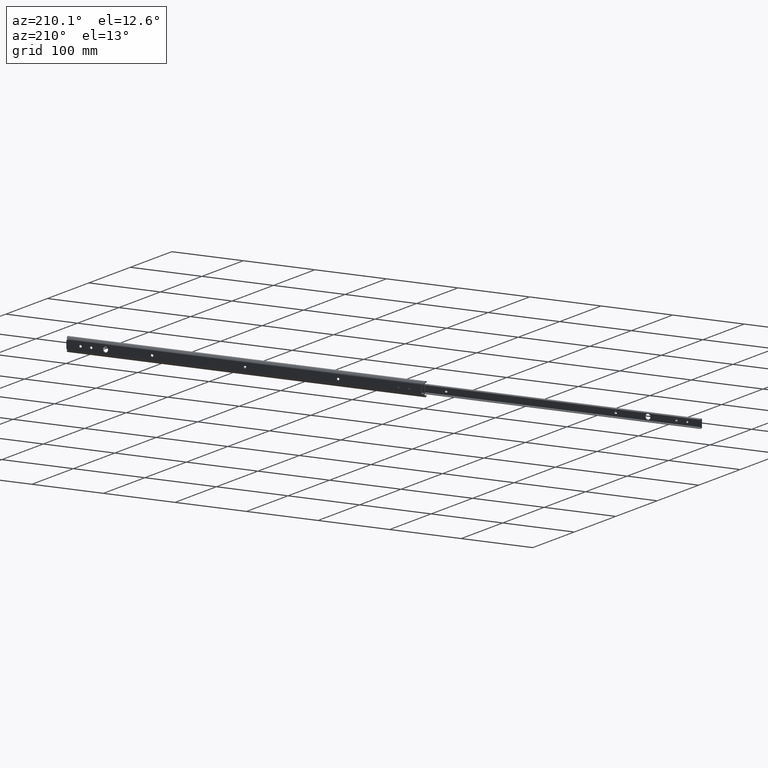
[diagram: clean part render]
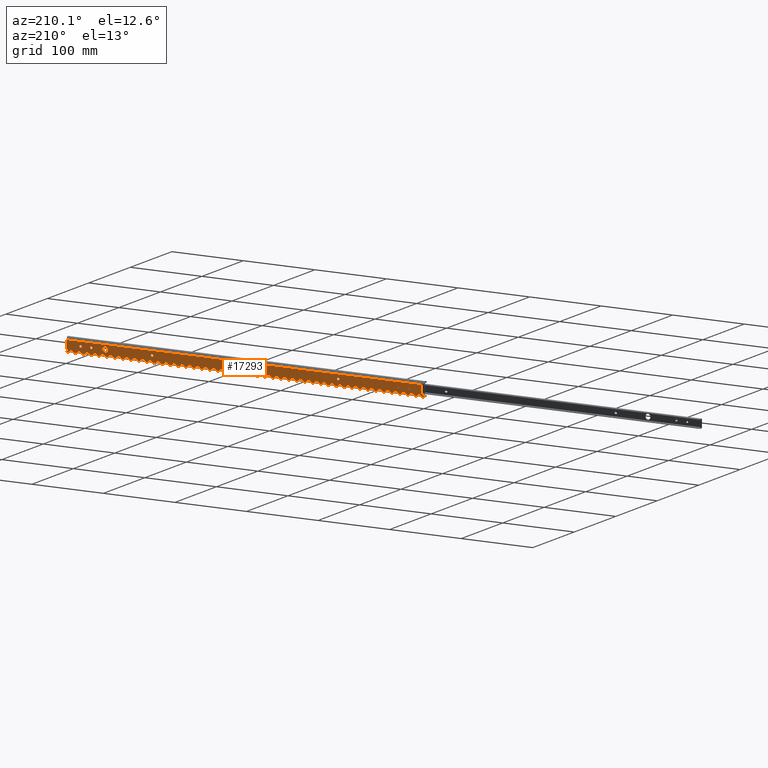
[diagram: same view with one face highlighted and labeled with its STEP entity id]
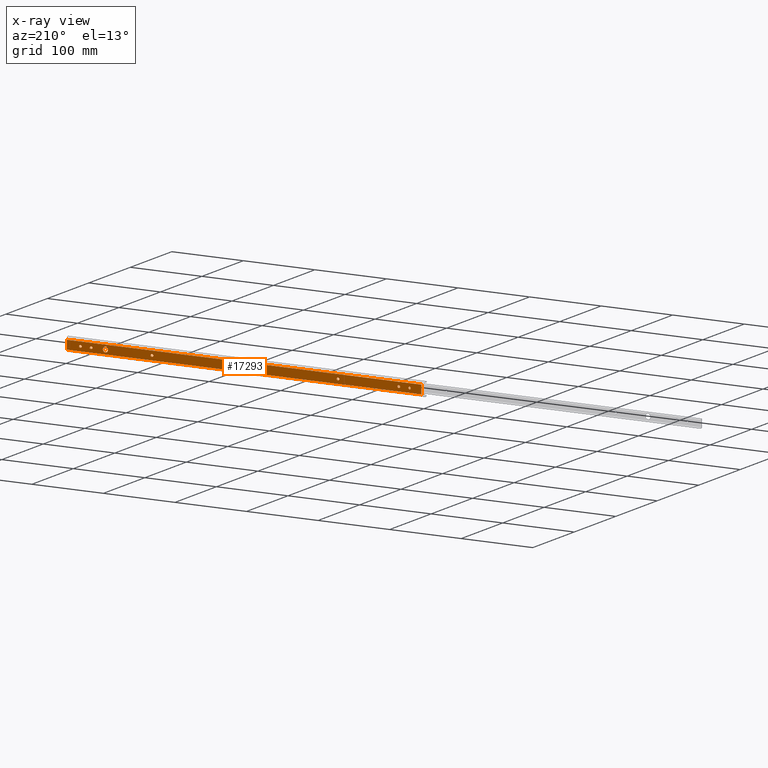
[diagram: x-ray of the same camera — body ghosted, the highlighted face saturated]
A machine part, auxiliary view. The second image highlights one B-rep face of the part: STEP entity #17293.
The next image is the same camera in x-ray: the body ghosted, the highlighted face saturated — about 0% of this face is hidden behind the body in this view.
In plain terms, the highlighted face is a freeform B-spline surface patch.
Its self-contained STEP definition (entity closure, byte-faithful):
#13776=CARTESIAN_POINT('',(21.597015676147201,5.204170E-017,-0.097677684964874));
#13777=VERTEX_POINT('',#13776);
#13783=CARTESIAN_POINT('',(20.0,0.0,-1.600000000000000));
#13784=VERTEX_POINT('',#13783);
#13785=CARTESIAN_POINT('',(20.0,0.0,-1.600000000000000));
#13786=CARTESIAN_POINT('',(21.505129666052557,0.0,-1.600000000000001));
#13787=CARTESIAN_POINT('',(21.597015676147201,5.204170E-017,-0.097677684964874));
#13795=(BOUNDED_CURVE()B_SPLINE_CURVE(2,(#13785,#13786,#13787),.UNSPECIFIED.,.F.,.U.)B_SPLINE_CURVE_WITH_KNOTS((3,3),(0.500000000000000,0.739332957550924),.UNSPECIFIED.)CURVE()GEOMETRIC_REPRESENTATION_ITEM()RATIONAL_B_SPLINE_CURVE((1.0,0.719603998779066,0.976072031619401))REPRESENTATION_ITEM(''));
#13796=EDGE_CURVE('',#13784,#13777,#13795,.T.);
#13798=CARTESIAN_POINT('',(18.411184761992889,4.968999E-017,0.188854810572561));
#13799=VERTEX_POINT('',#13798);
#13800=CARTESIAN_POINT('',(18.411184761992882,4.968999E-017,0.188854810572561));
#13801=CARTESIAN_POINT('',(18.399999999999999,0.0,0.094758626936107));
#13802=CARTESIAN_POINT('',(18.399999999999999,0.0,0.0));
#13803=CARTESIAN_POINT('',(18.399999999999991,0.0,-1.600000000000000));
#13804=CARTESIAN_POINT('',(20.0,0.0,-1.600000000000000));
#13812=(BOUNDED_CURVE()B_SPLINE_CURVE(2,(#13800,#13801,#13802,#13803,#13804),.UNSPECIFIED.,.F.,.U.)B_SPLINE_CURVE_WITH_KNOTS((3,2,3),(0.229562466043801,0.250000000000000,0.500000000000000),.UNSPECIFIED.)CURVE()GEOMETRIC_REPRESENTATION_ITEM()RATIONAL_B_SPLINE_CURVE((0.956026739542767,0.976055939579838,1.0,0.707106781186548,1.0))REPRESENTATION_ITEM(''));
#13813=EDGE_CURVE('',#13799,#13784,#13812,.T.);
#13857=CARTESIAN_POINT('',(20.0,0.0,1.600000000000000));
#13858=VERTEX_POINT('',#13857);
#13859=CARTESIAN_POINT('',(20.0,0.0,1.600000000000000));
#13860=CARTESIAN_POINT('',(18.578920821747779,0.0,1.600000000000000));
#13861=CARTESIAN_POINT('',(18.411184761992882,4.968999E-017,0.188854810572561));
#13869=(BOUNDED_CURVE()B_SPLINE_CURVE(2,(#13859,#13860,#13861),.UNSPECIFIED.,.F.,.U.)B_SPLINE_CURVE_WITH_KNOTS((3,3),(0.0,0.229562466043801),.UNSPECIFIED.)CURVE()GEOMETRIC_REPRESENTATION_ITEM()RATIONAL_B_SPLINE_CURVE((1.0,0.731050841606709,0.956026739542767))REPRESENTATION_ITEM(''));
#13870=EDGE_CURVE('',#13858,#13799,#13869,.T.);
#13872=CARTESIAN_POINT('',(21.597015676147205,5.204170E-017,-0.097677684964874));
#13873=CARTESIAN_POINT('',(21.599999999999998,0.0,-0.048884443047715));
#13874=CARTESIAN_POINT('',(21.600000000000001,0.0,0.0));
#13875=CARTESIAN_POINT('',(21.600000000000005,0.0,1.600000000000000));
#13876=CARTESIAN_POINT('',(20.0,0.0,1.600000000000000));
#13884=(BOUNDED_CURVE()B_SPLINE_CURVE(2,(#13872,#13873,#13874,#13875,#13876),.UNSPECIFIED.,.F.,.U.)B_SPLINE_CURVE_WITH_KNOTS((3,2,3),(0.739332957550924,0.750000000000000,1.0),.UNSPECIFIED.)CURVE()GEOMETRIC_REPRESENTATION_ITEM()RATIONAL_B_SPLINE_CURVE((0.976072031619400,0.987502782407481,1.0,0.707106781186548,1.0))REPRESENTATION_ITEM(''));
#13885=EDGE_CURVE('',#13777,#13858,#13884,.T.);
#13962=CARTESIAN_POINT('',(448.643192014079320,5.204170E-017,-0.222827171925205));
#13963=VERTEX_POINT('',#13962);
#13969=CARTESIAN_POINT('',(445.0,0.0,-3.650000000000000));
#13970=VERTEX_POINT('',#13969);
#13971=CARTESIAN_POINT('',(445.0,0.0,-3.650000000000000));
#13972=CARTESIAN_POINT('',(448.433577139252460,0.0,-3.650000000000000));
#13973=CARTESIAN_POINT('',(448.643192014079370,5.204170E-017,-0.222827171925205));
#13981=(BOUNDED_CURVE()B_SPLINE_CURVE(2,(#13971,#13972,#13973),.UNSPECIFIED.,.F.,.U.)B_SPLINE_CURVE_WITH_KNOTS((3,3),(0.500000000000000,0.739332961993513),.UNSPECIFIED.)CURVE()GEOMETRIC_REPRESENTATION_ITEM()RATIONAL_B_SPLINE_CURVE((1.0,0.719603993574250,0.976072041140714))REPRESENTATION_ITEM(''));
#13982=EDGE_CURVE('',#13970,#13963,#13981,.T.);
#13984=CARTESIAN_POINT('',(441.375515229027090,4.968999E-017,0.430824958638113));
#13985=VERTEX_POINT('',#13984);
#13986=CARTESIAN_POINT('',(441.375515229027090,4.968999E-017,0.430824958638113));
#13987=CARTESIAN_POINT('',(441.350000000000080,0.0,0.216168038893051));
#13988=CARTESIAN_POINT('',(441.350000000000020,0.0,0.0));
#13989=CARTESIAN_POINT('',(441.349999999999910,0.0,-3.650000000000000));
#13990=CARTESIAN_POINT('',(445.0,0.0,-3.650000000000000));
#13998=(BOUNDED_CURVE()B_SPLINE_CURVE(2,(#13986,#13987,#13988,#13989,#13990),.UNSPECIFIED.,.F.,.U.)B_SPLINE_CURVE_WITH_KNOTS((3,2,3),(0.229562473315987,0.250000000000000,0.500000000000000),.UNSPECIFIED.)CURVE()GEOMETRIC_REPRESENTATION_ITEM()RATIONAL_B_SPLINE_CURVE((0.956026753796550,0.976055948099735,1.0,0.707106781186547,1.0))REPRESENTATION_ITEM(''));
#13999=EDGE_CURVE('',#13985,#13970,#13998,.T.);
#14043=CARTESIAN_POINT('',(445.0,0.0,3.650000000000000));
#14044=VERTEX_POINT('',#14043);
#14045=CARTESIAN_POINT('',(445.0,0.0,3.650000000000000));
#14046=CARTESIAN_POINT('',(441.758162984134340,0.0,3.650000000000000));
#14047=CARTESIAN_POINT('',(441.375515229027090,4.968999E-017,0.430824958638113));
#14055=(BOUNDED_CURVE()B_SPLINE_CURVE(2,(#14045,#14046,#14047),.UNSPECIFIED.,.F.,.U.)B_SPLINE_CURVE_WITH_KNOTS((3,3),(0.0,0.229562473315987),.UNSPECIFIED.)CURVE()GEOMETRIC_REPRESENTATION_ITEM()RATIONAL_B_SPLINE_CURVE((1.0,0.731050833086813,0.956026753796550))REPRESENTATION_ITEM(''));
#14056=EDGE_CURVE('',#14044,#13985,#14055,.T.);
#14058=CARTESIAN_POINT('',(448.643192014079320,5.204170E-017,-0.222827171925205));
#14059=CARTESIAN_POINT('',(448.650000000000090,0.0,-0.111517588670181));
#14060=CARTESIAN_POINT('',(448.649999999999980,0.0,0.0));
#14061=CARTESIAN_POINT('',(448.649999999999920,0.0,3.650000000000000));
#14062=CARTESIAN_POINT('',(445.0,0.0,3.650000000000000));
#14070=(BOUNDED_CURVE()B_SPLINE_CURVE(2,(#14058,#14059,#14060,#14061,#14062),.UNSPECIFIED.,.F.,.U.)B_SPLINE_CURVE_WITH_KNOTS((3,2,3),(0.739332961993512,0.750000000000000,1.0),.UNSPECIFIED.)CURVE()GEOMETRIC_REPRESENTATION_ITEM()RATIONAL_B_SPLINE_CURVE((0.976072041140713,0.987502787612298,1.0,0.707106781186547,1.0))REPRESENTATION_ITEM(''));
#14071=EDGE_CURVE('',#13963,#14044,#14070,.T.);
#14106=CARTESIAN_POINT('',(35.299999999999997,8.526513E-014,-1.600000000000080));
#14107=VERTEX_POINT('',#14106);
#14113=CARTESIAN_POINT('',(34.700000000000003,0.0,-1.600000000000000));
#14114=VERTEX_POINT('',#14113);
#14115=CARTESIAN_POINT('',(34.700000000000003,0.0,-1.600000000000000));
#14116=CARTESIAN_POINT('',(35.299999999999997,8.526513E-014,-1.600000000000080));
#14117=QUASI_UNIFORM_CURVE('',1,(#14115,#14116),.UNSPECIFIED.,.F.,.U.);
#14118=EDGE_CURVE('',#14114,#14107,#14117,.T.);
#14164=CARTESIAN_POINT('',(34.700000000000003,0.0,1.600000000000025));
#14165=VERTEX_POINT('',#14164);
#14166=CARTESIAN_POINT('',(34.700000000000003,0.0,1.600000000000000));
#14167=CARTESIAN_POINT('',(33.100000000000009,0.0,1.600000000000000));
#14168=CARTESIAN_POINT('',(33.100000000000001,0.0,0.0));
#14169=CARTESIAN_POINT('',(33.100000000000009,0.0,-1.600000000000000));
#14170=CARTESIAN_POINT('',(34.700000000000003,0.0,-1.600000000000000));
#14178=(BOUNDED_CURVE()B_SPLINE_CURVE(2,(#14166,#14167,#14168,#14169,#14170),.UNSPECIFIED.,.F.,.U.)B_SPLINE_CURVE_WITH_KNOTS((3,2,3),(0.0,0.500000000000000,1.0),.UNSPECIFIED.)CURVE()GEOMETRIC_REPRESENTATION_ITEM()RATIONAL_B_SPLINE_CURVE((1.0,0.707106781186548,1.0,0.707106781186548,1.0))REPRESENTATION_ITEM(''));
#14179=EDGE_CURVE('',#14165,#14114,#14178,.T.);
#14202=CARTESIAN_POINT('',(35.299999999999997,0.0,1.600000000000025));
#14203=VERTEX_POINT('',#14202);
#14204=CARTESIAN_POINT('',(35.299999999999997,0.0,1.600000000000025));
#14205=CARTESIAN_POINT('',(34.700000000000003,0.0,1.600000000000025));
#14206=QUASI_UNIFORM_CURVE('',1,(#14204,#14205),.UNSPECIFIED.,.F.,.U.);
#14207=EDGE_CURVE('',#14203,#14165,#14206,.T.);
#14251=CARTESIAN_POINT('',(35.299999999999997,8.526513E-014,-1.600000000000080));
#14252=CARTESIAN_POINT('',(36.900000000000006,0.0,-1.600000000000000));
#14253=CARTESIAN_POINT('',(36.899999999999999,0.0,0.0));
#14254=CARTESIAN_POINT('',(36.900000000000006,0.0,1.600000000000000));
#14255=CARTESIAN_POINT('',(35.299999999999997,0.0,1.600000000000000));
#14263=(BOUNDED_CURVE()B_SPLINE_CURVE(2,(#14251,#14252,#14253,#14254,#14255),.UNSPECIFIED.,.F.,.U.)B_SPLINE_CURVE_WITH_KNOTS((3,2,3),(0.0,0.500000000000000,1.0),.UNSPECIFIED.)CURVE()GEOMETRIC_REPRESENTATION_ITEM()RATIONAL_B_SPLINE_CURVE((1.0,0.707106781186548,1.0,0.707106781186548,1.0))REPRESENTATION_ITEM(''));
#14264=EDGE_CURVE('',#14107,#14203,#14263,.T.);
#14284=CARTESIAN_POINT('',(120.300000000000000,8.526513E-014,-1.600000000000000));
#14285=VERTEX_POINT('',#14284);
#14291=CARTESIAN_POINT('',(119.700000000000000,0.0,-1.600000000000000));
#14292=VERTEX_POINT('',#14291);
#14293=CARTESIAN_POINT('',(119.700000000000000,0.0,-1.600000000000000));
#14294=CARTESIAN_POINT('',(120.300000000000000,8.526513E-014,-1.600000000000000));
#14295=QUASI_UNIFORM_CURVE('',1,(#14293,#14294),.UNSPECIFIED.,.F.,.U.);
#14296=EDGE_CURVE('',#14292,#14285,#14295,.T.);
#14342=CARTESIAN_POINT('',(119.700000000000000,0.0,1.599999999999910));
#14343=VERTEX_POINT('',#14342);
#14344=CARTESIAN_POINT('',(119.700000000000000,0.0,1.600000000000000));
#14345=CARTESIAN_POINT('',(118.099999999999980,0.0,1.600000000000000));
#14346=CARTESIAN_POINT('',(118.099999999999990,0.0,0.0));
#14347=CARTESIAN_POINT('',(118.099999999999980,0.0,-1.600000000000000));
#14348=CARTESIAN_POINT('',(119.700000000000000,0.0,-1.600000000000000));
#14356=(BOUNDED_CURVE()B_SPLINE_CURVE(2,(#14344,#14345,#14346,#14347,#14348),.UNSPECIFIED.,.F.,.U.)B_SPLINE_CURVE_WITH_KNOTS((3,2,3),(0.0,0.500000000000000,1.0),.UNSPECIFIED.)CURVE()GEOMETRIC_REPRESENTATION_ITEM()RATIONAL_B_SPLINE_CURVE((1.0,0.707106781186548,1.0,0.707106781186548,1.0))REPRESENTATION_ITEM(''));
#14357=EDGE_CURVE('',#14343,#14292,#14356,.T.);
#14380=CARTESIAN_POINT('',(120.300000000000000,0.0,1.599999999999910));
#14381=VERTEX_POINT('',#14380);
#14382=CARTESIAN_POINT('',(120.300000000000000,0.0,1.599999999999910));
#14383=CARTESIAN_POINT('',(119.700000000000000,0.0,1.599999999999910));
#14384=QUASI_UNIFORM_CURVE('',1,(#14382,#14383),.UNSPECIFIED.,.F.,.U.);
#14385=EDGE_CURVE('',#14381,#14343,#14384,.T.);
#14429=CARTESIAN_POINT('',(120.300000000000000,0.0,-1.600000000000000));
#14430=CARTESIAN_POINT('',(121.900000000000010,0.0,-1.600000000000000));
#14431=CARTESIAN_POINT('',(121.900000000000010,0.0,0.0));
#14432=CARTESIAN_POINT('',(121.900000000000010,0.0,1.600000000000000));
#14433=CARTESIAN_POINT('',(120.300000000000000,0.0,1.600000000000000));
#14441=(BOUNDED_CURVE()B_SPLINE_CURVE(2,(#14429,#14430,#14431,#14432,#14433),.UNSPECIFIED.,.F.,.U.)B_SPLINE_CURVE_WITH_KNOTS((3,2,3),(0.0,0.500000000000000,1.0),.UNSPECIFIED.)CURVE()GEOMETRIC_REPRESENTATION_ITEM()RATIONAL_B_SPLINE_CURVE((1.0,0.707106781186548,1.0,0.707106781186548,1.0))REPRESENTATION_ITEM(''));
#14442=EDGE_CURVE('',#14285,#14381,#14441,.T.);
#14462=CARTESIAN_POINT('',(250.300000000000010,8.526513E-014,-1.600000000000000));
#14463=VERTEX_POINT('',#14462);
#14469=CARTESIAN_POINT('',(249.699999999999990,0.0,-1.600000000000000));
#14470=VERTEX_POINT('',#14469);
#14471=CARTESIAN_POINT('',(249.699999999999990,0.0,-1.600000000000000));
#14472=CARTESIAN_POINT('',(250.300000000000010,8.526513E-014,-1.600000000000000));
#14473=QUASI_UNIFORM_CURVE('',1,(#14471,#14472),.UNSPECIFIED.,.F.,.U.);
#14474=EDGE_CURVE('',#14470,#14463,#14473,.T.);
#14520=CARTESIAN_POINT('',(249.699999999999990,0.0,1.599999999999910));
#14521=VERTEX_POINT('',#14520);
#14522=CARTESIAN_POINT('',(249.699999999999990,0.0,1.600000000000000));
#14523=CARTESIAN_POINT('',(248.100000000000080,0.0,1.600000000000000));
#14524=CARTESIAN_POINT('',(248.099999999999990,0.0,0.0));
#14525=CARTESIAN_POINT('',(248.100000000000080,0.0,-1.600000000000000));
#14526=CARTESIAN_POINT('',(249.699999999999990,0.0,-1.600000000000000));
#14534=(BOUNDED_CURVE()B_SPLINE_CURVE(2,(#14522,#14523,#14524,#14525,#14526),.UNSPECIFIED.,.F.,.U.)B_SPLINE_CURVE_WITH_KNOTS((3,2,3),(0.0,0.500000000000000,1.0),.UNSPECIFIED.)CURVE()GEOMETRIC_REPRESENTATION_ITEM()RATIONAL_B_SPLINE_CURVE((1.0,0.707106781186548,1.0,0.707106781186548,1.0))REPRESENTATION_ITEM(''));
#14535=EDGE_CURVE('',#14521,#14470,#14534,.T.);
#14558=CARTESIAN_POINT('',(250.300000000000010,0.0,1.599999999999910));
#14559=VERTEX_POINT('',#14558);
#14560=CARTESIAN_POINT('',(250.300000000000010,0.0,1.599999999999910));
#14561=CARTESIAN_POINT('',(249.699999999999990,0.0,1.599999999999910));
#14562=QUASI_UNIFORM_CURVE('',1,(#14560,#14561),.UNSPECIFIED.,.F.,.U.);
#14563=EDGE_CURVE('',#14559,#14521,#14562,.T.);
#14607=CARTESIAN_POINT('',(250.300000000000010,0.0,-1.600000000000000));
#14608=CARTESIAN_POINT('',(251.900000000000090,0.0,-1.600000000000000));
#14609=CARTESIAN_POINT('',(251.900000000000010,0.0,0.0));
#14610=CARTESIAN_POINT('',(251.900000000000090,0.0,1.600000000000000));
#14611=CARTESIAN_POINT('',(250.300000000000010,0.0,1.600000000000000));
#14619=(BOUNDED_CURVE()B_SPLINE_CURVE(2,(#14607,#14608,#14609,#14610,#14611),.UNSPECIFIED.,.F.,.U.)B_SPLINE_CURVE_WITH_KNOTS((3,2,3),(0.0,0.500000000000000,1.0),.UNSPECIFIED.)CURVE()GEOMETRIC_REPRESENTATION_ITEM()RATIONAL_B_SPLINE_CURVE((1.0,0.707106781186548,1.0,0.707106781186548,1.0))REPRESENTATION_ITEM(''));
#14620=EDGE_CURVE('',#14463,#14559,#14619,.T.);
#14640=CARTESIAN_POINT('',(380.300000000000010,8.526513E-014,-1.600000000000000));
#14641=VERTEX_POINT('',#14640);
#14647=CARTESIAN_POINT('',(379.699999999999990,0.0,-1.600000000000025));
#14648=VERTEX_POINT('',#14647);
#14649=CARTESIAN_POINT('',(379.699999999999990,0.0,-1.600000000000025));
#14650=CARTESIAN_POINT('',(380.300000000000010,8.526513E-014,-1.600000000000000));
#14651=QUASI_UNIFORM_CURVE('',1,(#14649,#14650),.UNSPECIFIED.,.F.,.U.);
#14652=EDGE_CURVE('',#14648,#14641,#14651,.T.);
#14698=CARTESIAN_POINT('',(379.699999999999990,0.0,1.599999999999910));
#14699=VERTEX_POINT('',#14698);
#14700=CARTESIAN_POINT('',(379.699999999999990,0.0,1.600000000000025));
#14701=CARTESIAN_POINT('',(378.100000000000020,0.0,1.600000000000026));
#14702=CARTESIAN_POINT('',(378.099999999999910,0.0,0.0));
#14703=CARTESIAN_POINT('',(378.100000000000020,0.0,-1.600000000000026));
#14704=CARTESIAN_POINT('',(379.699999999999990,0.0,-1.600000000000025));
#14712=(BOUNDED_CURVE()B_SPLINE_CURVE(2,(#14700,#14701,#14702,#14703,#14704),.UNSPECIFIED.,.F.,.U.)B_SPLINE_CURVE_WITH_KNOTS((3,2,3),(0.0,0.500000000000000,1.0),.UNSPECIFIED.)CURVE()GEOMETRIC_REPRESENTATION_ITEM()RATIONAL_B_SPLINE_CURVE((1.0,0.707106781186547,1.0,0.707106781186547,1.0))REPRESENTATION_ITEM(''));
#14713=EDGE_CURVE('',#14699,#14648,#14712,.T.);
#14736=CARTESIAN_POINT('',(380.300000000000010,0.0,1.599999999999910));
#14737=VERTEX_POINT('',#14736);
#14738=CARTESIAN_POINT('',(380.300000000000010,0.0,1.599999999999910));
#14739=CARTESIAN_POINT('',(379.699999999999990,0.0,1.599999999999910));
#14740=QUASI_UNIFORM_CURVE('',1,(#14738,#14739),.UNSPECIFIED.,.F.,.U.);
#14741=EDGE_CURVE('',#14737,#14699,#14740,.T.);
#14785=CARTESIAN_POINT('',(380.300000000000010,0.0,-1.600000000000025));
#14786=CARTESIAN_POINT('',(381.900000000000150,0.0,-1.600000000000026));
#14787=CARTESIAN_POINT('',(381.900000000000090,0.0,0.0));
#14788=CARTESIAN_POINT('',(381.900000000000150,0.0,1.600000000000026));
#14789=CARTESIAN_POINT('',(380.300000000000010,0.0,1.600000000000025));
#14797=(BOUNDED_CURVE()B_SPLINE_CURVE(2,(#14785,#14786,#14787,#14788,#14789),.UNSPECIFIED.,.F.,.U.)B_SPLINE_CURVE_WITH_KNOTS((3,2,3),(0.0,0.500000000000000,1.0),.UNSPECIFIED.)CURVE()GEOMETRIC_REPRESENTATION_ITEM()RATIONAL_B_SPLINE_CURVE((1.0,0.707106781186547,1.0,0.707106781186547,1.0))REPRESENTATION_ITEM(''));
#14798=EDGE_CURVE('',#14641,#14737,#14797,.T.);
#14818=CARTESIAN_POINT('',(465.300000000000010,8.526513E-014,-1.600000000000000));
#14819=VERTEX_POINT('',#14818);
#14825=CARTESIAN_POINT('',(464.699999999999990,0.0,-1.600000000000025));
#14826=VERTEX_POINT('',#14825);
#14827=CARTESIAN_POINT('',(464.699999999999990,0.0,-1.600000000000025));
#14828=CARTESIAN_POINT('',(465.300000000000010,8.526513E-014,-1.600000000000000));
#14829=QUASI_UNIFORM_CURVE('',1,(#14827,#14828),.UNSPECIFIED.,.F.,.U.);
#14830=EDGE_CURVE('',#14826,#14819,#14829,.T.);
#14876=CARTESIAN_POINT('',(464.699999999999990,0.0,1.599999999999910));
#14877=VERTEX_POINT('',#14876);
#14878=CARTESIAN_POINT('',(464.699999999999990,0.0,1.600000000000025));
#14879=CARTESIAN_POINT('',(463.099999999999970,0.0,1.600000000000026));
#14880=CARTESIAN_POINT('',(463.100000000000020,0.0,0.0));
#14881=CARTESIAN_POINT('',(463.099999999999970,0.0,-1.600000000000026));
#14882=CARTESIAN_POINT('',(464.699999999999990,0.0,-1.600000000000025));
#14890=(BOUNDED_CURVE()B_SPLINE_CURVE(2,(#14878,#14879,#14880,#14881,#14882),.UNSPECIFIED.,.F.,.U.)B_SPLINE_CURVE_WITH_KNOTS((3,2,3),(0.0,0.500000000000000,1.0),.UNSPECIFIED.)CURVE()GEOMETRIC_REPRESENTATION_ITEM()RATIONAL_B_SPLINE_CURVE((1.0,0.707106781186547,1.0,0.707106781186547,1.0))REPRESENTATION_ITEM(''));
#14891=EDGE_CURVE('',#14877,#14826,#14890,.T.);
#14914=CARTESIAN_POINT('',(465.300000000000010,0.0,1.599999999999910));
#14915=VERTEX_POINT('',#14914);
#14916=CARTESIAN_POINT('',(465.300000000000010,0.0,1.599999999999910));
#14917=CARTESIAN_POINT('',(464.699999999999990,0.0,1.599999999999910));
#14918=QUASI_UNIFORM_CURVE('',1,(#14916,#14917),.UNSPECIFIED.,.F.,.U.);
#14919=EDGE_CURVE('',#14915,#14877,#14918,.T.);
#14963=CARTESIAN_POINT('',(465.300000000000010,0.0,-1.600000000000025));
#14964=CARTESIAN_POINT('',(466.899999999999980,0.0,-1.600000000000026));
#14965=CARTESIAN_POINT('',(466.899999999999980,0.0,0.0));
#14966=CARTESIAN_POINT('',(466.899999999999980,0.0,1.600000000000026));
#14967=CARTESIAN_POINT('',(465.300000000000010,0.0,1.600000000000025));
#14975=(BOUNDED_CURVE()B_SPLINE_CURVE(2,(#14963,#14964,#14965,#14966,#14967),.UNSPECIFIED.,.F.,.U.)B_SPLINE_CURVE_WITH_KNOTS((3,2,3),(0.0,0.500000000000000,1.0),.UNSPECIFIED.)CURVE()GEOMETRIC_REPRESENTATION_ITEM()RATIONAL_B_SPLINE_CURVE((1.0,0.707106781186547,1.0,0.707106781186547,1.0))REPRESENTATION_ITEM(''));
#14976=EDGE_CURVE('',#14819,#14915,#14975,.T.);
#14996=CARTESIAN_POINT('',(480.300000000000010,8.526513E-014,-1.600000000000000));
#14997=VERTEX_POINT('',#14996);
#15003=CARTESIAN_POINT('',(479.699999999999990,0.0,-1.600000000000025));
#15004=VERTEX_POINT('',#15003);
#15005=CARTESIAN_POINT('',(479.699999999999990,0.0,-1.600000000000025));
#15006=CARTESIAN_POINT('',(480.300000000000010,8.526513E-014,-1.600000000000000));
#15007=QUASI_UNIFORM_CURVE('',1,(#15005,#15006),.UNSPECIFIED.,.F.,.U.);
#15008=EDGE_CURVE('',#15004,#14997,#15007,.T.);
#15054=CARTESIAN_POINT('',(479.699999999999990,0.0,1.599999999999910));
#15055=VERTEX_POINT('',#15054);
#15056=CARTESIAN_POINT('',(479.699999999999990,0.0,1.600000000000025));
#15057=CARTESIAN_POINT('',(478.099999999999970,0.0,1.600000000000026));
#15058=CARTESIAN_POINT('',(478.100000000000020,0.0,0.0));
#15059=CARTESIAN_POINT('',(478.099999999999970,0.0,-1.600000000000026));
#15060=CARTESIAN_POINT('',(479.699999999999990,0.0,-1.600000000000025));
#15068=(BOUNDED_CURVE()B_SPLINE_CURVE(2,(#15056,#15057,#15058,#15059,#15060),.UNSPECIFIED.,.F.,.U.)B_SPLINE_CURVE_WITH_KNOTS((3,2,3),(0.0,0.500000000000000,1.0),.UNSPECIFIED.)CURVE()GEOMETRIC_REPRESENTATION_ITEM()RATIONAL_B_SPLINE_CURVE((1.0,0.707106781186547,1.0,0.707106781186547,1.0))REPRESENTATION_ITEM(''));
#15069=EDGE_CURVE('',#15055,#15004,#15068,.T.);
#15092=CARTESIAN_POINT('',(480.300000000000010,0.0,1.599999999999910));
#15093=VERTEX_POINT('',#15092);
#15094=CARTESIAN_POINT('',(480.300000000000010,0.0,1.599999999999910));
#15095=CARTESIAN_POINT('',(479.699999999999990,0.0,1.599999999999910));
#15096=QUASI_UNIFORM_CURVE('',1,(#15094,#15095),.UNSPECIFIED.,.F.,.U.);
#15097=EDGE_CURVE('',#15093,#15055,#15096,.T.);
#15141=CARTESIAN_POINT('',(480.300000000000010,0.0,-1.600000000000025));
#15142=CARTESIAN_POINT('',(481.899999999999920,0.0,-1.600000000000026));
#15143=CARTESIAN_POINT('',(481.899999999999980,0.0,0.0));
#15144=CARTESIAN_POINT('',(481.899999999999920,0.0,1.600000000000026));
#15145=CARTESIAN_POINT('',(480.300000000000010,0.0,1.600000000000025));
#15153=(BOUNDED_CURVE()B_SPLINE_CURVE(2,(#15141,#15142,#15143,#15144,#15145),.UNSPECIFIED.,.F.,.U.)B_SPLINE_CURVE_WITH_KNOTS((3,2,3),(0.0,0.500000000000000,1.0),.UNSPECIFIED.)CURVE()GEOMETRIC_REPRESENTATION_ITEM()RATIONAL_B_SPLINE_CURVE((1.0,0.707106781186547,1.0,0.707106781186547,1.0))REPRESENTATION_ITEM(''));
#15154=EDGE_CURVE('',#14997,#15093,#15153,.T.);
#15213=CARTESIAN_POINT('',(499.0,0.0,-5.383484861008860));
#15214=VERTEX_POINT('',#15213);
#15226=CARTESIAN_POINT('',(499.0,0.0,5.383484861008770));
#15227=VERTEX_POINT('',#15226);
#15228=CARTESIAN_POINT('',(499.0,0.0,5.383484861008770));
#15229=CARTESIAN_POINT('',(499.0,0.0,-5.383484861008860));
#15230=QUASI_UNIFORM_CURVE('',1,(#15228,#15229),.UNSPECIFIED.,.F.,.U.);
#15231=EDGE_CURVE('',#15227,#15214,#15230,.T.);
#15637=CARTESIAN_POINT('',(498.424053688013880,0.0,6.081989000000000));
#15638=VERTEX_POINT('',#15637);
#15639=CARTESIAN_POINT('',(498.424053688014110,0.0,6.081989000000020));
#15640=CARTESIAN_POINT('',(498.534727763389640,0.0,5.586546312725789));
#15641=CARTESIAN_POINT('',(499.0,0.0,5.383484861008826));
#15649=(BOUNDED_CURVE()B_SPLINE_CURVE(2,(#15639,#15640,#15641),.UNSPECIFIED.,.F.,.U.)CURVE()GEOMETRIC_REPRESENTATION_ITEM()QUASI_UNIFORM_CURVE()RATIONAL_B_SPLINE_CURVE((1.0,0.891680690258839,1.0))REPRESENTATION_ITEM(''));
#15650=EDGE_CURVE('',#15638,#15227,#15649,.T.);
#15851=CARTESIAN_POINT('',(498.424053688013880,0.0,-6.081989000000000));
#15852=VERTEX_POINT('',#15851);
#15853=CARTESIAN_POINT('',(499.000000000000110,0.0,-5.383484861008925));
#15854=CARTESIAN_POINT('',(498.534727763389750,0.0,-5.586546312725862));
#15855=CARTESIAN_POINT('',(498.424053688014110,0.0,-6.081989000000025));
#15863=(BOUNDED_CURVE()B_SPLINE_CURVE(2,(#15853,#15854,#15855),.UNSPECIFIED.,.F.,.U.)CURVE()GEOMETRIC_REPRESENTATION_ITEM()QUASI_UNIFORM_CURVE()RATIONAL_B_SPLINE_CURVE((1.0,0.891680690258861,1.0))REPRESENTATION_ITEM(''));
#15864=EDGE_CURVE('',#15214,#15852,#15863,.T.);
#17194=CARTESIAN_POINT('',(3.499999999999950,7.958044E-014,-6.081989000000000));
#17195=VERTEX_POINT('',#17194);
#17196=CARTESIAN_POINT('',(498.424053688013880,0.0,-6.081989000000000));
#17197=CARTESIAN_POINT('',(3.499999999999950,7.958044E-014,-6.081989000000000));
#17198=QUASI_UNIFORM_CURVE('',1,(#17196,#17197),.UNSPECIFIED.,.F.,.U.);
#17199=EDGE_CURVE('',#15852,#17195,#17198,.T.);
#17222=CARTESIAN_POINT('',(-21.250224039624900,8.526513E-014,-6.689579519878855));
#17223=CARTESIAN_POINT('',(-21.250224039624900,8.526513E-014,6.689579084861102));
#17224=CARTESIAN_POINT('',(523.750237329970670,8.526513E-014,-6.689579519878855));
#17225=CARTESIAN_POINT('',(523.750237329970670,8.526513E-014,6.689579084861102));
#17226=B_SPLINE_SURFACE_WITH_KNOTS('',1,1,((#17222,#17224),(#17223,#17225)),.UNSPECIFIED.,.F.,.F.,.U.,(2,2),(2,2),(0.0,13.379158604739960),(0.0,545.000461369595540),.UNSPECIFIED.);
#17227=ORIENTED_EDGE('',*,*,#15650,.T.);
#17228=ORIENTED_EDGE('',*,*,#15231,.T.);
#17229=ORIENTED_EDGE('',*,*,#15864,.T.);
#17230=ORIENTED_EDGE('',*,*,#17199,.T.);
#17231=CARTESIAN_POINT('',(3.499999999999950,-9.085614E-014,6.081989000000000));
#17232=VERTEX_POINT('',#17231);
#17233=CARTESIAN_POINT('',(3.499999999999950,7.958044E-014,-6.081989000000000));
#17234=CARTESIAN_POINT('',(3.499999999999950,-9.085614E-014,6.081989000000000));
#17235=QUASI_UNIFORM_CURVE('',1,(#17233,#17234),.UNSPECIFIED.,.F.,.U.);
#17236=EDGE_CURVE('',#17195,#17232,#17235,.T.);
#17237=ORIENTED_EDGE('',*,*,#17236,.T.);
#17238=CARTESIAN_POINT('',(498.424053688013880,0.0,6.081989000000000));
#17239=CARTESIAN_POINT('',(3.499999999999950,-9.085614E-014,6.081989000000000));
#17240=QUASI_UNIFORM_CURVE('',1,(#17238,#17239),.UNSPECIFIED.,.F.,.U.);
#17241=EDGE_CURVE('',#15638,#17232,#17240,.T.);
#17242=ORIENTED_EDGE('',*,*,#17241,.F.);
#17243=EDGE_LOOP('',(#17227,#17228,#17229,#17230,#17237,#17242));
#17244=FACE_OUTER_BOUND('',#17243,.T.);
#17245=ORIENTED_EDGE('',*,*,#14264,.T.);
#17246=ORIENTED_EDGE('',*,*,#14207,.T.);
#17247=ORIENTED_EDGE('',*,*,#14179,.T.);
#17248=ORIENTED_EDGE('',*,*,#14118,.T.);
#17249=EDGE_LOOP('',(#17245,#17246,#17247,#17248));
#17250=FACE_BOUND('',#17249,.T.);
#17251=ORIENTED_EDGE('',*,*,#14442,.T.);
#17252=ORIENTED_EDGE('',*,*,#14385,.T.);
#17253=ORIENTED_EDGE('',*,*,#14357,.T.);
#17254=ORIENTED_EDGE('',*,*,#14296,.T.);
#17255=EDGE_LOOP('',(#17251,#17252,#17253,#17254));
#17256=FACE_BOUND('',#17255,.T.);
#17257=ORIENTED_EDGE('',*,*,#14620,.T.);
#17258=ORIENTED_EDGE('',*,*,#14563,.T.);
#17259=ORIENTED_EDGE('',*,*,#14535,.T.);
#17260=ORIENTED_EDGE('',*,*,#14474,.T.);
#17261=EDGE_LOOP('',(#17257,#17258,#17259,#17260));
#17262=FACE_BOUND('',#17261,.T.);
#17263=ORIENTED_EDGE('',*,*,#14798,.T.);
#17264=ORIENTED_EDGE('',*,*,#14741,.T.);
#17265=ORIENTED_EDGE('',*,*,#14713,.T.);
#17266=ORIENTED_EDGE('',*,*,#14652,.T.);
#17267=EDGE_LOOP('',(#17263,#17264,#17265,#17266));
#17268=FACE_BOUND('',#17267,.T.);
#17269=ORIENTED_EDGE('',*,*,#14976,.T.);
#17270=ORIENTED_EDGE('',*,*,#14919,.T.);
#17271=ORIENTED_EDGE('',*,*,#14891,.T.);
#17272=ORIENTED_EDGE('',*,*,#14830,.T.);
#17273=EDGE_LOOP('',(#17269,#17270,#17271,#17272));
#17274=FACE_BOUND('',#17273,.T.);
#17275=ORIENTED_EDGE('',*,*,#15154,.T.);
#17276=ORIENTED_EDGE('',*,*,#15097,.T.);
#17277=ORIENTED_EDGE('',*,*,#15069,.T.);
#17278=ORIENTED_EDGE('',*,*,#15008,.T.);
#17279=EDGE_LOOP('',(#17275,#17276,#17277,#17278));
#17280=FACE_BOUND('',#17279,.T.);
#17281=ORIENTED_EDGE('',*,*,#13982,.T.);
#17282=ORIENTED_EDGE('',*,*,#14071,.T.);
#17283=ORIENTED_EDGE('',*,*,#14056,.T.);
#17284=ORIENTED_EDGE('',*,*,#13999,.T.);
#17285=EDGE_LOOP('',(#17281,#17282,#17283,#17284));
#17286=FACE_BOUND('',#17285,.T.);
#17287=ORIENTED_EDGE('',*,*,#13796,.T.);
#17288=ORIENTED_EDGE('',*,*,#13885,.T.);
#17289=ORIENTED_EDGE('',*,*,#13870,.T.);
#17290=ORIENTED_EDGE('',*,*,#13813,.T.);
#17291=EDGE_LOOP('',(#17287,#17288,#17289,#17290));
#17292=FACE_BOUND('',#17291,.T.);
#17293=ADVANCED_FACE('',(#17244,#17250,#17256,#17262,#17268,#17274,#17280,#17286,#17292),#17226,.T.);